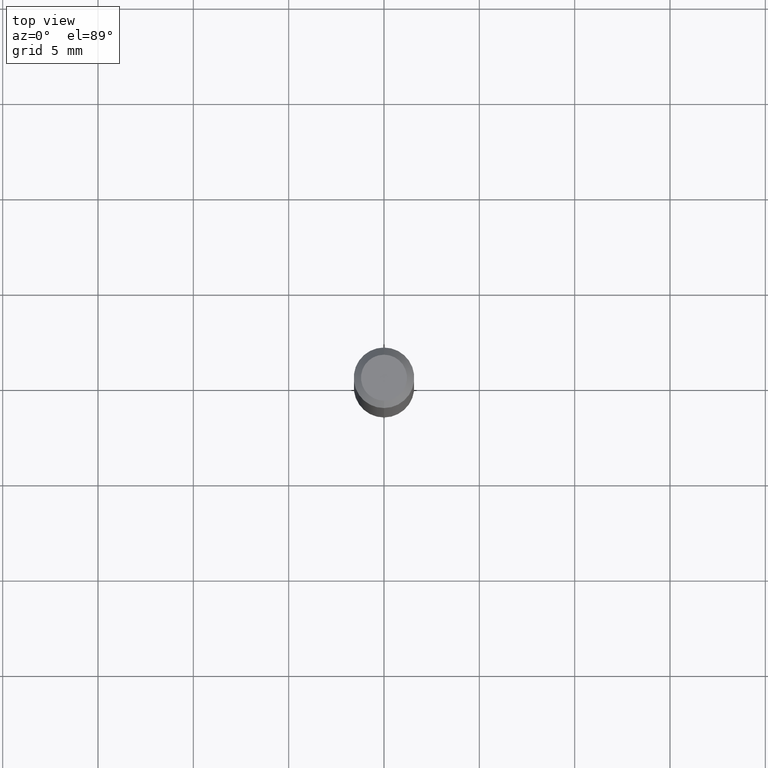
[diagram: clean part render]
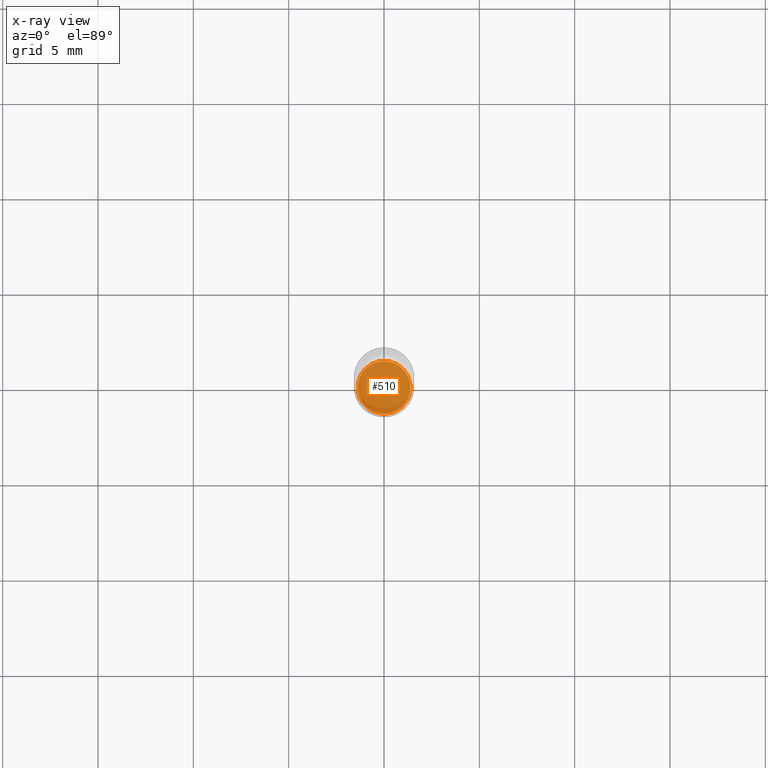
[diagram: x-ray — body ghosted, one internal face saturated and labeled with its STEP entity id]
A machine part, top view, then the same camera in x-ray: the body is ghosted and one INTERNAL B-rep face — a face not visible from any outside direction — is saturated and labeled: STEP entity #510.
In plain terms, the highlighted planar face has unit normal (-0, 0, 1).
Its self-contained STEP definition (entity closure, byte-faithful):
#15 = EDGE_LOOP ( 'NONE', ( #269, #251 ) ) ;
#55 = CARTESIAN_POINT ( 'NONE',  ( -3.805714659338729375E-16, -0.05450000000000408684, -1.169999999999999929 ) ) ;
#101 = DIRECTION ( 'NONE',  ( -6.982962677686266711E-15, -1.000000000000000000, 2.506282562994736586E-15 ) ) ;
#109 = CIRCLE ( 'NONE', #248, 0.05450000000000000677 ) ;
#118 = CARTESIAN_POINT ( 'NONE',  ( 3.890221478286836949E-16, 0.05449999999999592670, -1.170000000000000151 ) ) ;
#120 = DIRECTION ( 'NONE',  ( -2.445557116082536842E-29, 3.491354874043780807E-15, 1.000000000000000000 ) ) ;
#197 = PLANE ( 'NONE',  #473 ) ;
#217 = EDGE_CURVE ( 'NONE', #358, #271, #109, .T. ) ;
#221 = DIRECTION ( 'NONE',  ( -6.982962677686266711E-15, -1.000000000000000000, 2.506282562994736586E-15 ) ) ;
#223 = EDGE_CURVE ( 'NONE', #271, #358, #495, .T. ) ;
#234 = CARTESIAN_POINT ( 'NONE',  ( 2.861301825816568708E-29, -4.084885202631223537E-15, -1.170000000000000151 ) ) ;
#248 = AXIS2_PLACEMENT_3D ( 'NONE', #367, #256, #101 ) ;
#251 = ORIENTED_EDGE ( 'NONE', *, *, #217, .F. ) ;
#256 = DIRECTION ( 'NONE',  ( -2.445557116082537122E-29, 3.491354874043780807E-15, 1.000000000000000000 ) ) ;
#259 = DIRECTION ( 'NONE',  ( -2.445557116082537122E-29, 3.491354874043780807E-15, 1.000000000000000000 ) ) ;
#269 = ORIENTED_EDGE ( 'NONE', *, *, #223, .F. ) ;
#271 = VERTEX_POINT ( 'NONE', #55 ) ;
#334 = CARTESIAN_POINT ( 'NONE',  ( 2.861301825816568708E-29, -4.084885202631223537E-15, -1.170000000000000151 ) ) ;
#358 = VERTEX_POINT ( 'NONE', #118 ) ;
#367 = CARTESIAN_POINT ( 'NONE',  ( 2.861301825816568708E-29, -4.084885202631223537E-15, -1.170000000000000151 ) ) ;
#423 = DIRECTION ( 'NONE',  ( -6.982962677686265922E-15, -1.000000000000000000, 3.491354874043780807E-15 ) ) ;
#454 = AXIS2_PLACEMENT_3D ( 'NONE', #334, #259, #221 ) ;
#470 = FACE_OUTER_BOUND ( 'NONE', #15, .T. ) ;
#473 = AXIS2_PLACEMENT_3D ( 'NONE', #234, #120, #423 ) ;
#495 = CIRCLE ( 'NONE', #454, 0.05450000000000000677 ) ;
#510 = ADVANCED_FACE ( 'NONE', ( #470 ), #197, .F. ) ;